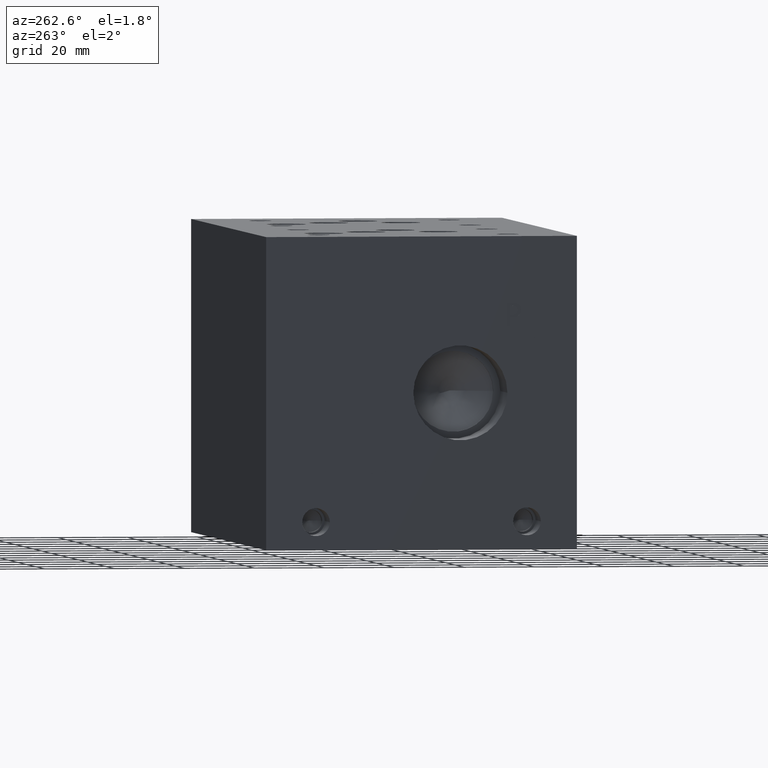
[diagram: clean part render]
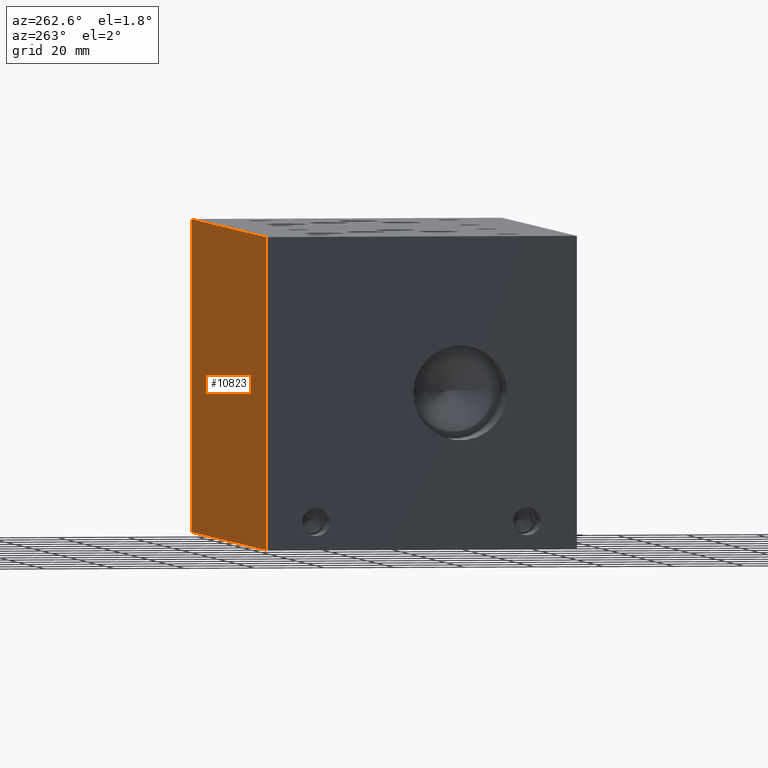
[diagram: same view with one face highlighted and labeled with its STEP entity id]
A machine part, auxiliary view. The second image highlights one B-rep face of the part: STEP entity #10823.
In plain terms, the highlighted planar face has unit normal (0, 1, 0).
Its self-contained STEP definition (entity closure, byte-faithful):
#1357=FACE_OUTER_BOUND('',#1976,.T.);
#1976=EDGE_LOOP('',(#9449,#9450,#9451,#9452));
#2060=LINE('',#13793,#3070);
#3006=LINE('',#18633,#4016);
#3007=LINE('',#18635,#4017);
#3008=LINE('',#18636,#4018);
#3070=VECTOR('',#11501,10.);
#4016=VECTOR('',#13521,10.);
#4017=VECTOR('',#13522,10.);
#4018=VECTOR('',#13523,10.);
#4069=VERTEX_POINT('',#13786);
#4072=VERTEX_POINT('',#13791);
#5045=VERTEX_POINT('',#18632);
#5046=VERTEX_POINT('',#18634);
#5122=EDGE_CURVE('',#4069,#4072,#2060,.T.);
#6531=EDGE_CURVE('',#5045,#4069,#3006,.T.);
#6532=EDGE_CURVE('',#5046,#4072,#3007,.T.);
#6533=EDGE_CURVE('',#5045,#5046,#3008,.T.);
#9449=ORIENTED_EDGE('',*,*,#6531,.T.);
#9450=ORIENTED_EDGE('',*,*,#5122,.T.);
#9451=ORIENTED_EDGE('',*,*,#6532,.F.);
#9452=ORIENTED_EDGE('',*,*,#6533,.F.);
#9831=PLANE('',#11397);
#10823=ADVANCED_FACE('',(#1357),#9831,.T.);
#11397=AXIS2_PLACEMENT_3D('',#18631,#13519,#13520);
#11501=DIRECTION('',(0.,0.,1.));
#13519=DIRECTION('center_axis',(0.,1.,0.));
#13520=DIRECTION('ref_axis',(-1.,0.,0.));
#13521=DIRECTION('',(-1.,0.,0.));
#13522=DIRECTION('',(-1.,0.,0.));
#13523=DIRECTION('',(0.,0.,1.));
#13786=CARTESIAN_POINT('',(0.,88.9,0.));
#13791=CARTESIAN_POINT('',(0.,88.9,88.9));
#13793=CARTESIAN_POINT('',(0.,88.9,0.));
#18631=CARTESIAN_POINT('Origin',(165.1,88.9,0.));
#18632=CARTESIAN_POINT('',(165.1,88.9,0.));
#18633=CARTESIAN_POINT('',(165.1,88.9,0.));
#18634=CARTESIAN_POINT('',(165.1,88.9,88.9));
#18635=CARTESIAN_POINT('',(165.1,88.9,88.9));
#18636=CARTESIAN_POINT('',(165.1,88.9,0.));